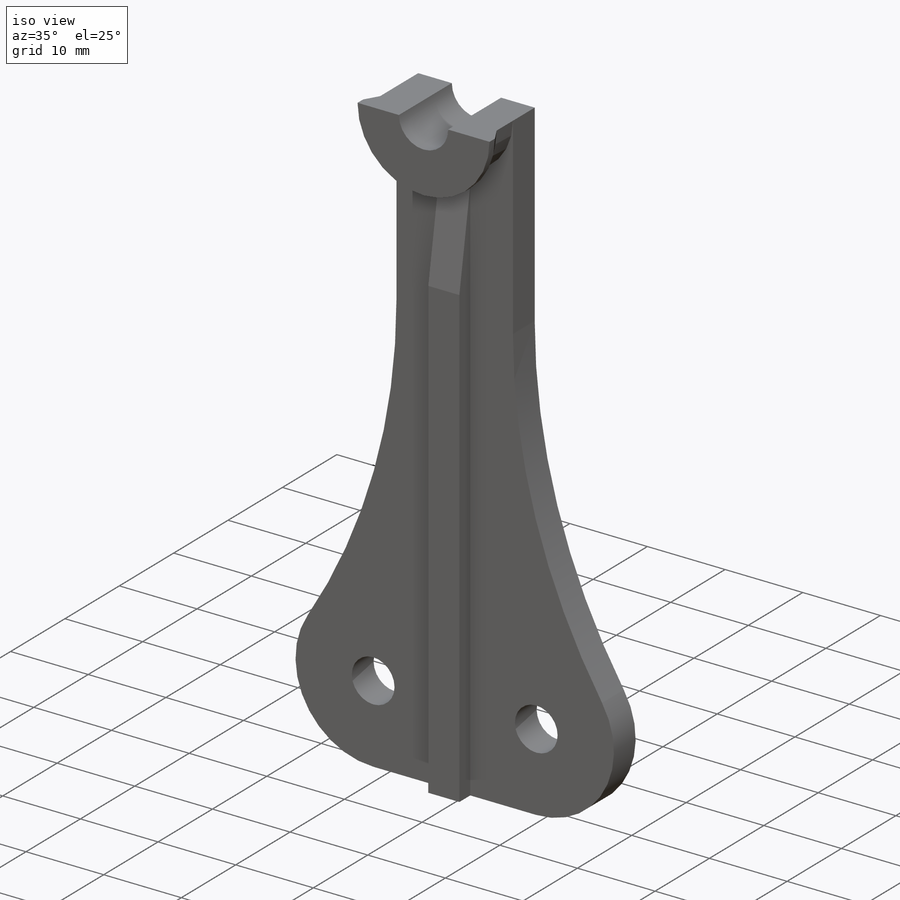
[diagram: iso view]
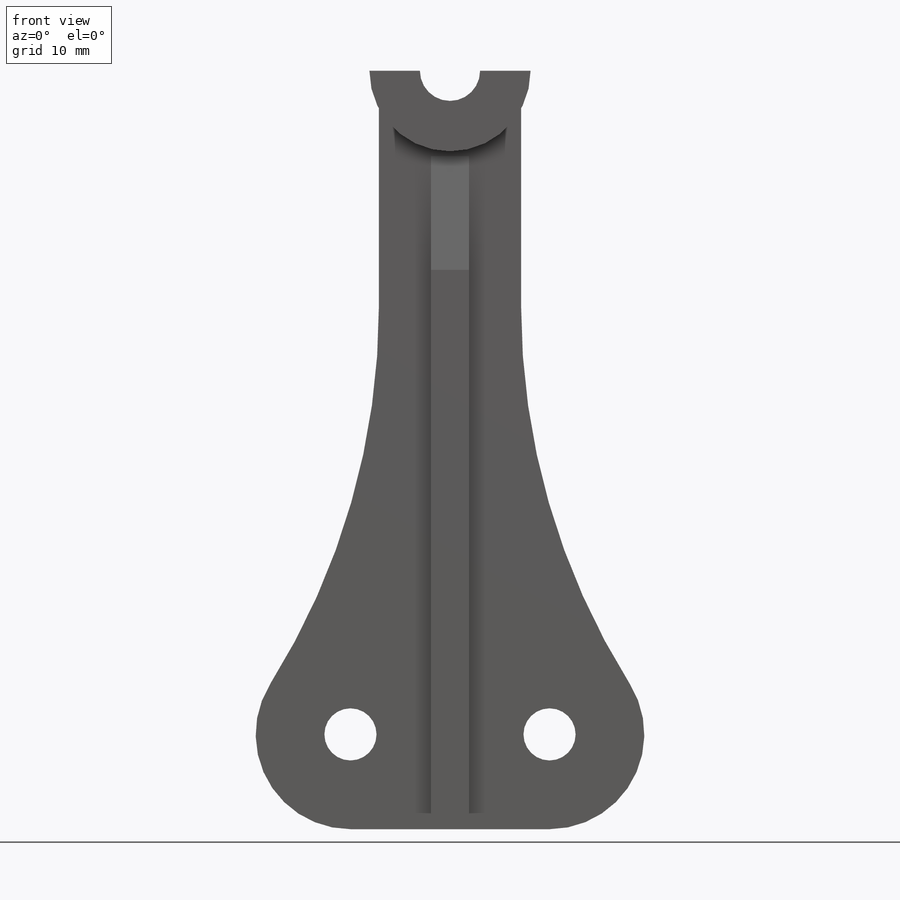
[diagram: front view]
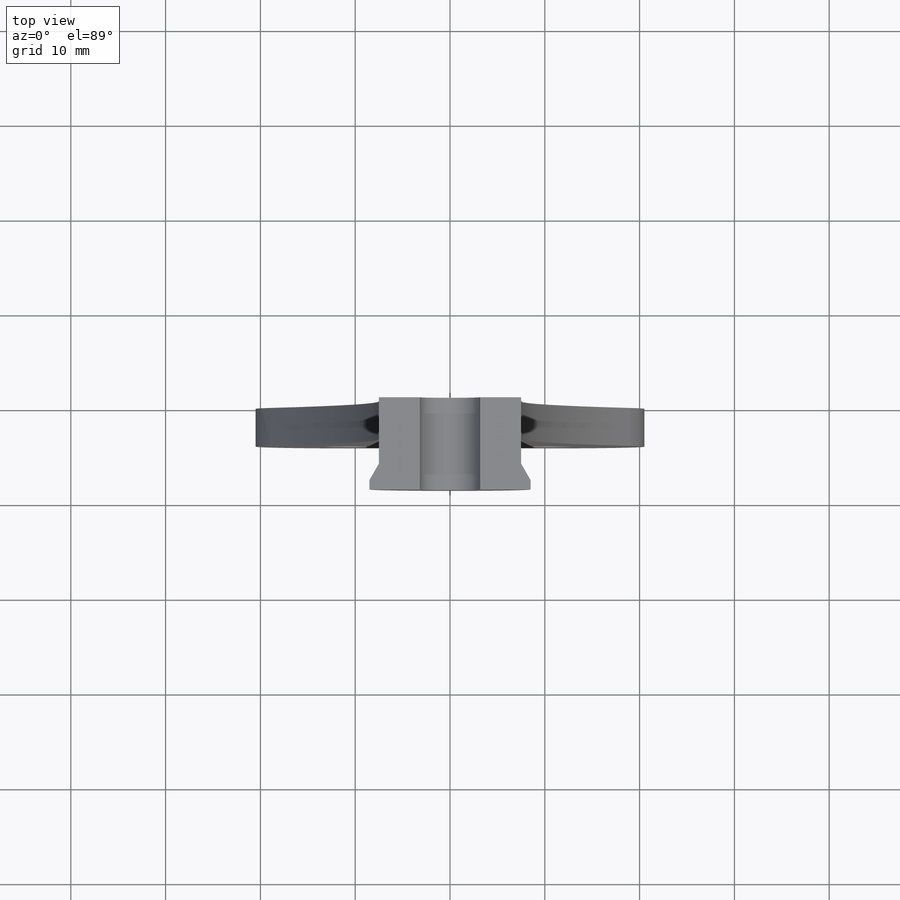
[diagram: top view]
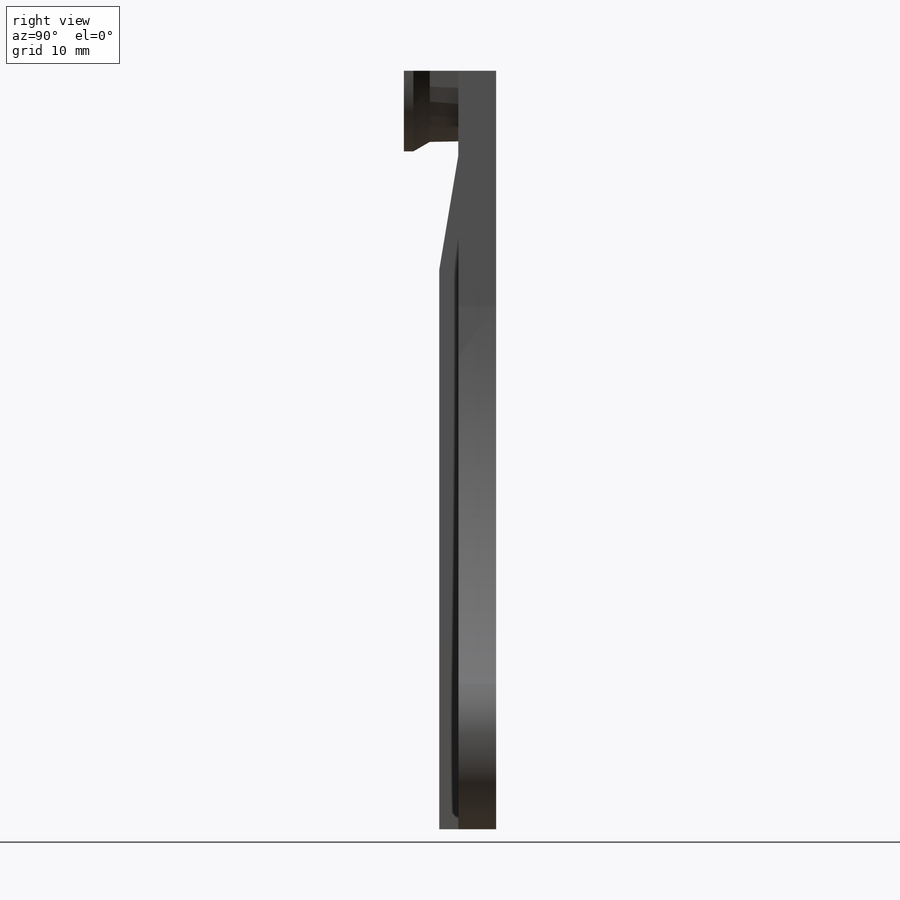
[diagram: right view]
SOLIDWORKS PART (.sldprt)
format: sldprt  version: not decoded by parser v0  size: 201,728 bytes
history: native  units: mm
features: sketch x4, extrude x3, material x1, revolve x1 (+11 scaffold rows collapsed)
feature tree (20):
  scaffold x11  (default folders/planes/origin — collapsed)
  material  "Material <not specified>"
  sketch  "Sketch1"  dims[c1.D1=20.0mm c1.D2=5.5mm c1.D5=6.35mm c1.D6=15.0mm c1.D3=21.0mm c1.D4=70.0mm c2.D6=15.0mm]
  extrude  "Boss-Extrude1"  Depth=4mm
  sketch  "Sketch2"  dims[c1.D1=3.0mm c1.D2=~1.80482mm c2.D2=30.0deg c2.D3=1.0mm c2.D4=17.0mm]
  revolve  "Revolve1"  Angle=180deg
  sketch  "Sketch3"  dims[D1=2.0mm D2=9.0mm D3=12.0mm]
  extrude  "Boss-Extrude2"  Depth=4mm
  sketch  "Sketch4"  dims[D1=150.0mm]
  extrude  "Boss-Extrude3"  [1 undecoded]
decode coverage: 7 of 8 modeling features carry decoded parameters
note: ~ marks probable driven/reference dimensions
note: 1 parameter value undecoded
note: suppression state not decoded; provenance and decode notes live in map.json
